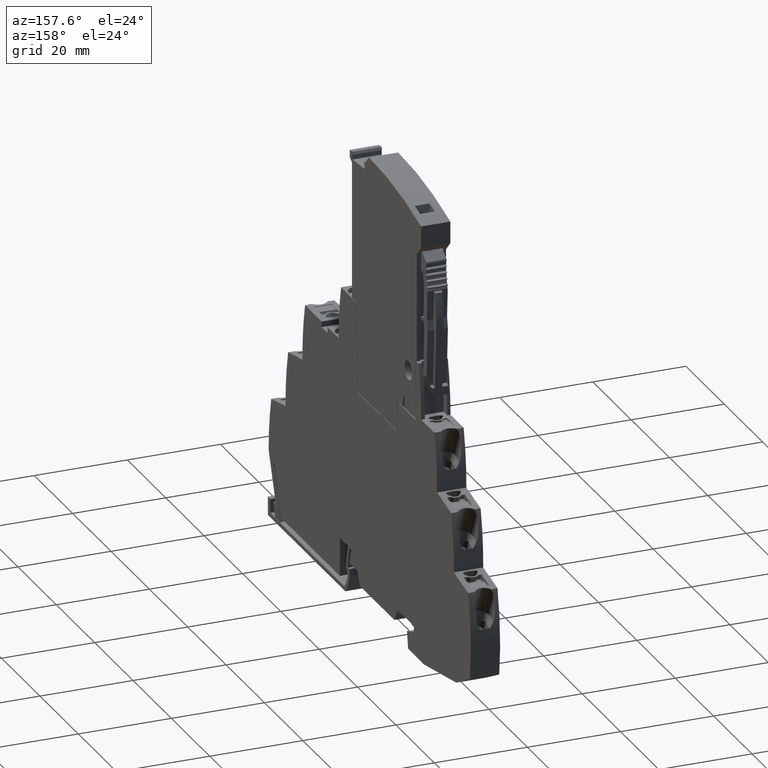
[diagram: clean part render]
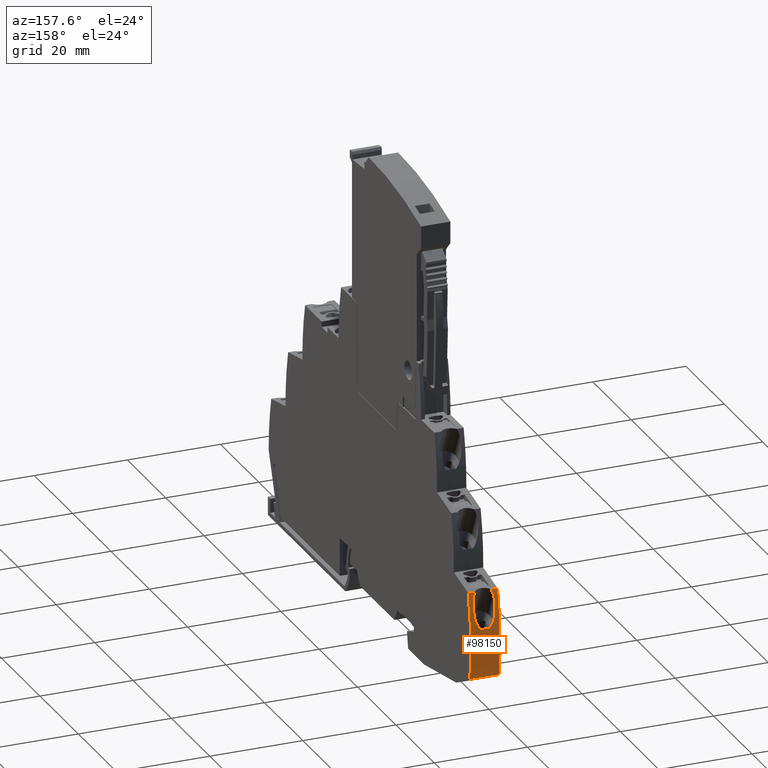
[diagram: same view with one face highlighted and labeled with its STEP entity id]
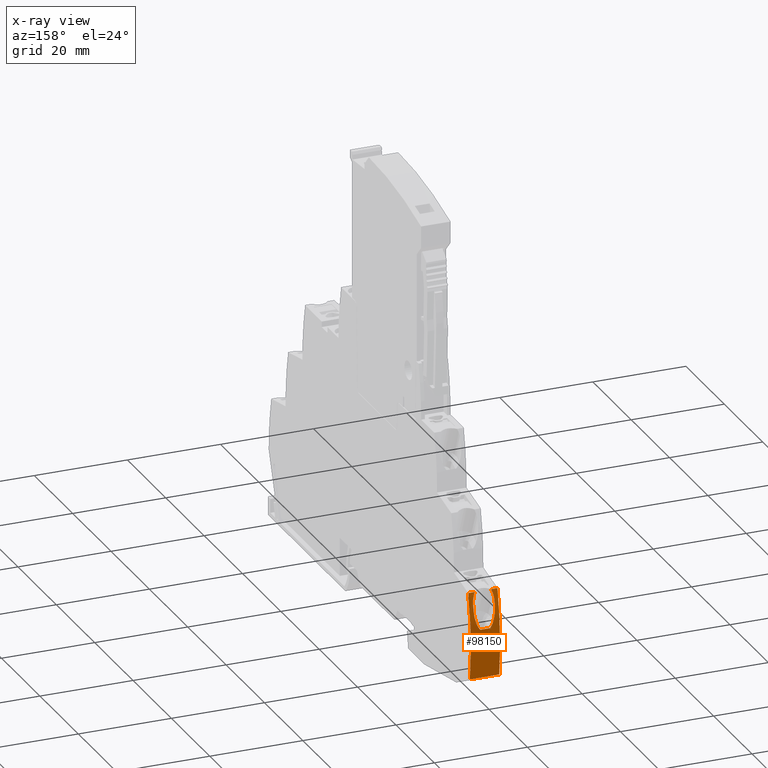
[diagram: x-ray of the same camera — body ghosted, the highlighted face saturated]
A machine part, auxiliary view. The second image highlights one B-rep face of the part: STEP entity #98150.
The next image is the same camera in x-ray: the body ghosted, the highlighted face saturated — about 0% of this face is hidden behind the body in this view.
In plain terms, the highlighted cylindrical surface (partial cylindrical patch) has radius 50 mm, axis along (1, -0, -0).
Its self-contained STEP definition (entity closure, byte-faithful):
#24380=CARTESIAN_POINT('',(28.3248298485418,18.9749312571121,
6.30000008066345));
#24390=VERTEX_POINT('',#24380);
#24420=CARTESIAN_POINT('',(-20.3052351230874,7.3509568569714,
6.30000001878975));
#24430=DIRECTION('',(-4.25831752161686E-18,-1.10352358519E-9,1.));
#24440=DIRECTION('',(1.,0.,4.25831752161686E-18));
#24450=AXIS2_PLACEMENT_3D('',#24420,#24430,#24440);
#24460=CIRCLE('',#24450,50.);
#24470=CARTESIAN_POINT('',(29.2351400995933,0.586991836659795,
6.30000008182167));
#24480=VERTEX_POINT('',#24470);
#24490=EDGE_CURVE('',#24480,#24390,#24460,.T.);
#95450=CARTESIAN_POINT('',(28.3248298485417,18.9749312640644,
2.09392815591282E-8));
#95460=DIRECTION('',(4.25831752161686E-18,1.10352358519E-9,-1.));
#95470=VECTOR('',#95460,1.);
#95480=LINE('',#95450,#95470);
#95490=CARTESIAN_POINT('',(28.3248298485417,18.9749312586198,
4.93382129660629));
#95500=VERTEX_POINT('',#95490);
#95510=EDGE_CURVE('',#24390,#95500,#95480,.T.);
#95590=CARTESIAN_POINT('',(28.3248298485418,18.9749312640643,
2.09392812177507E-8));
#95600=VERTEX_POINT('',#95590);
#95630=CARTESIAN_POINT('',(28.3248298485417,18.9749312640644,
2.09392815591282E-8));
#95640=DIRECTION('',(-4.25831752161686E-18,-1.10352358519E-9,1.));
#95650=VECTOR('',#95640,1.);
#95660=LINE('',#95630,#95650);
#95670=CARTESIAN_POINT('',(28.3248298485425,18.9749312625537,
1.36617876853156));
#95680=VERTEX_POINT('',#95670);
#95690=EDGE_CURVE('',#95600,#95680,#95660,.T.);
#96350=CARTESIAN_POINT('',(27.3557931861141,12.8862954601481,
3.25000002850913));
#96360=DIRECTION('',(0.390731082790663,0.920504872850349,
6.01727697571383E-10));
#96370=DIRECTION('',(-0.920504872850349,0.390731082790663,
1.84207079026413E-11));
#96380=AXIS2_PLACEMENT_3D('',#96350,#96360,#96370);
#96390=CYLINDRICAL_SURFACE('',#96380,2.4);
#96400=CARTESIAN_POINT('',(-20.3052351230874,7.3509568639236,
8.11195144784585E-9));
#96410=DIRECTION('',(-4.25831752161686E-18,-1.10352358519E-9,1.));
#96420=DIRECTION('',(1.,0.,4.25831752161686E-18));
#96430=AXIS2_PLACEMENT_3D('',#96400,#96410,#96420);
#96440=CYLINDRICAL_SURFACE('',#96430,50.);
#96450=CARTESIAN_POINT('',(28.3248298485536,18.9749312625815,
1.36617876848848));
#96460=CARTESIAN_POINT('',(28.371737302423,18.7786892157929,
1.27156871511747));
#96470=CARTESIAN_POINT('',(28.4189138152369,18.5760385378896,
1.19311444070335));
#96480=CARTESIAN_POINT('',(28.4657354832024,18.368779974366,
1.1276081292797));
#96490=CARTESIAN_POINT('',(28.5125671558539,18.1614771245763,
1.06208782070252));
#96500=CARTESIAN_POINT('',(28.5590416661705,17.9495522796298,
1.00965788279796));
#96510=CARTESIAN_POINT('',(28.6044368611651,17.7357527873217,
0.968705964483489));
#96520=CARTESIAN_POINT('',(28.6498138674886,17.5220389588956,
0.927770454534922));
#96530=CARTESIAN_POINT('',(28.6941522065579,17.3063086259138,
0.898237846139544));
#96540=CARTESIAN_POINT('',(28.737259777133,17.0892161510327,
0.8787806058038));
#96550=CARTESIAN_POINT('',(28.7803477544654,16.872222348972,
0.859332209168344));
#96560=CARTESIAN_POINT('',(28.8221465814913,16.6541637392281,
0.850000029439151));
#96570=CARTESIAN_POINT('',(28.8624864744992,16.4358428227668,
0.850000030829445));
#96580=B_SPLINE_CURVE_WITH_KNOTS('',3,(#96450,#96460,#96470,#96480,
#96490,#96500,#96510,#96520,#96530,#96540,#96550,#96560,#96570),
.UNSPECIFIED.,.F.,.F.,(4,3,3,3,4),(0.,0.667019382014363,1.33462576352451
,2.00103133372105,2.66713754970372),.UNSPECIFIED.);
#96590=SURFACE_CURVE('',#96580,(#96390,#96440),.CURVE_3D.);
#96600=CARTESIAN_POINT('',(28.862486474547,16.4358428227756,
0.850000030828847));
#96610=VERTEX_POINT('',#96600);
#96620=EDGE_CURVE('',#95680,#96610,#96590,.T.);
#96980=CARTESIAN_POINT('',(29.2351400995934,0.586991843611994,
6.47756729490483E-10));
#96990=DIRECTION('',(4.25831752161686E-18,1.10352358519E-9,-1.));
#97000=VECTOR('',#96990,1.);
#97010=LINE('',#96980,#97000);
#97020=CARTESIAN_POINT('',(29.2351400995933,0.586991843612006,
6.4775697356505E-10));
#97030=VERTEX_POINT('',#97020);
#97040=EDGE_CURVE('',#24480,#97030,#97010,.T.);
#97050=ORIENTED_EDGE('',*,*,#97040,.T.);
#97060=ORIENTED_EDGE('',*,*,#24490,.F.);
#97070=ORIENTED_EDGE('',*,*,#95510,.F.);
#97080=CARTESIAN_POINT('',(27.3557931861575,12.8862954602601,
3.05000002823553));
#97090=DIRECTION('',(0.390731082790663,0.920504872850349,
5.97847550714147E-10));
#97100=DIRECTION('',(-0.920504872850349,0.390731082790663,
1.79100721330412E-11));
#97110=AXIS2_PLACEMENT_3D('',#97080,#97090,#97100);
#97120=CYLINDRICAL_SURFACE('',#97110,2.4);
#97130=CARTESIAN_POINT('',(28.3248298485417,18.9749312586198,
4.93382129660629));
#97140=CARTESIAN_POINT('',(28.3717431654547,18.7786646829897,
5.02844317516408));
#97150=CARTESIAN_POINT('',(28.4193080981988,18.5743319785819,
5.10751694680456));
#97160=CARTESIAN_POINT('',(28.4661798664777,18.3668126994844,
5.17301327407816));
#97170=CARTESIAN_POINT('',(28.5130141893723,18.1594592054522,
5.23845727699454));
#97180=CARTESIAN_POINT('',(28.5592058839116,17.9487948543151,
5.29051478545078));
#97190=CARTESIAN_POINT('',(28.6045950540073,17.7350077076727,
5.33143676506));
#97200=CARTESIAN_POINT('',(28.6499540772047,17.5213625556819,
5.3723315648208));
#97210=CARTESIAN_POINT('',(28.6943702574809,17.3052253038066,
5.40187943706297));
#97220=CARTESIAN_POINT('',(28.7373870580919,17.0885751290637,
5.42127687882642));
#97230=CARTESIAN_POINT('',(28.7804236973002,16.8718250390433,
5.44068326635128));
#97240=CARTESIAN_POINT('',(28.8221867788311,16.6539461820629,
5.45000002917298));
#97250=CARTESIAN_POINT('',(28.8624864545877,16.4358429254519,
5.45000003054088));
#97260=B_SPLINE_CURVE_WITH_KNOTS('',3,(#97130,#97140,#97150,#97160,
#97170,#97180,#97190,#97200,#97210,#97220,#97230,#97240,#97250),
.UNSPECIFIED.,.F.,.F.,(4,3,3,3,4),(0.,0.669129781428772,1.33540070620062
,2.0016873958675,2.66713745140423),.UNSPECIFIED.);
#97270=SURFACE_CURVE('',#97260,(#96440,#97120),.CURVE_3D.);
#97280=CARTESIAN_POINT('',(28.8624864546356,16.4358429254607,
5.45000003054148));
#97290=VERTEX_POINT('',#97280);
#97300=EDGE_CURVE('',#95500,#97290,#97270,.T.);
#97310=ORIENTED_EDGE('',*,*,#97300,.F.);
#97320=CARTESIAN_POINT('',(-20.3052351230874,7.3509568579094,
5.45000001480175));
#97330=DIRECTION('',(-2.4614331803655E-18,1.10352358394837E-9,-1.));
#97340=DIRECTION('',(0.983354431744974,0.18169772031459,
2.00507717096343E-10));
#97350=AXIS2_PLACEMENT_3D('',#97320,#97330,#97340);
#97360=CIRCLE('',#97350,50.);
#97370=CARTESIAN_POINT('',(29.0514942231336,15.3455342853839,
5.45000002362395));
#97380=VERTEX_POINT('',#97370);
#97390=EDGE_CURVE('',#97290,#97380,#97360,.T.);
#97400=ORIENTED_EDGE('',*,*,#97390,.F.);
#97410=CARTESIAN_POINT('',(28.8779954278092,14.9367967330004,
3.05000002968929));
#97420=DIRECTION('',(-0.390731082786406,-0.920504872852155,
-5.97773776464338E-10));
#97430=DIRECTION('',(0.920504872852155,-0.390731082786406,
-1.12247074504474E-11));
#97440=AXIS2_PLACEMENT_3D('',#97410,#97420,#97430);
#97450=CYLINDRICAL_SURFACE('',#97440,2.40000000000534);
#97460=CARTESIAN_POINT('',(29.0514942253241,15.34553427186,
5.45000002996006));
#97470=CARTESIAN_POINT('',(29.1111993100674,14.9769284587181,
5.45000002749841));
#97480=CARTESIAN_POINT('',(29.1667566190729,14.6076360566627,
5.42549802919037));
#97490=CARTESIAN_POINT('',(29.2178251802445,14.2405503287651,
5.37764663415854));
#97500=CARTESIAN_POINT('',(29.2689384263986,13.8731434009162,
5.32975336916395));
#97510=CARTESIAN_POINT('',(29.3157380784546,13.5064434556475,
5.25823985057164));
#97520=CARTESIAN_POINT('',(29.3576934889237,13.1469487214282,
5.16147250871523));
#97530=CARTESIAN_POINT('',(29.3996611136095,12.7873493297523,
5.064676995587));
#97540=CARTESIAN_POINT('',(29.4367740019951,12.435169375376,
4.94338764813732));
#97550=CARTESIAN_POINT('',(29.4691858222611,12.0951132172819,
4.7885448327808));
#97560=CARTESIAN_POINT('',(29.5014752860501,11.7563407906534,
4.6342865579173));
#97570=CARTESIAN_POINT('',(29.5291961246046,11.4266809153236,
4.44637305411941));
#97580=CARTESIAN_POINT('',(29.5509109137879,11.1410363240273,
4.20728589773987));
#97590=B_SPLINE_CURVE_WITH_KNOTS('',3,(#97460,#97470,#97480,#97490,
#97500,#97510,#97520,#97530,#97540,#97550,#97560,#97570,#97580),
.UNSPECIFIED.,.F.,.F.,(4,3,3,3,4),(0.,1.12056532642393,2.24491679306269,
3.36774348572176,4.49134308601616),.UNSPECIFIED.);
#97600=SURFACE_CURVE('',#97590,(#96440,#97450),.CURVE_3D.);
#97610=CARTESIAN_POINT('',(29.550910913791,11.1410363240356,
4.20728589773022));
#97620=VERTEX_POINT('',#97610);
#97630=EDGE_CURVE('',#97380,#97620,#97600,.T.);
#97640=ORIENTED_EDGE('',*,*,#97630,.F.);
#97650=CARTESIAN_POINT('',(29.5509109140079,11.1410363258644,
1.22943937361451E-8));
#97660=DIRECTION('',(4.25831752161686E-18,1.10352358519E-9,-1.));
#97670=VECTOR('',#97660,1.);
#97680=LINE('',#97650,#97670);
#97690=CARTESIAN_POINT('',(29.5509109138669,11.1410363253708,
2.09271415726655));
#97700=VERTEX_POINT('',#97690);
#97710=EDGE_CURVE('',#97620,#97700,#97680,.T.);
#97720=ORIENTED_EDGE('',*,*,#97710,.F.);
#97730=CARTESIAN_POINT('',(28.8779954277658,14.9367967328885,
3.25000003001119));
#97740=DIRECTION('',(-0.390731082786406,-0.920504872852155,
-6.01801542064215E-10));
#97750=DIRECTION('',(0.920504872852155,-0.390731082786406,
-2.51059722625071E-11));
#97760=AXIS2_PLACEMENT_3D('',#97730,#97740,#97750);
#97770=CYLINDRICAL_SURFACE('',#97760,2.40000000000534);
#97780=CARTESIAN_POINT('',(29.5509109139013,11.141036324957,
2.09271415762612));
#97790=CARTESIAN_POINT('',(29.5290910654596,11.4280629063109,
1.85247026334026));
#97800=CARTESIAN_POINT('',(29.5014183656568,11.7569606253479,
1.66540644538811));
#97810=CARTESIAN_POINT('',(29.4691558362279,12.0954278158217,
1.51131198507559));
#97820=CARTESIAN_POINT('',(29.4367264028634,12.4356460006274,
1.35642034697397));
#97830=CARTESIAN_POINT('',(29.3992455733788,12.7910169388819,
1.23424911691578));
#97840=CARTESIAN_POINT('',(29.3574932324571,13.148664365069,
1.13806594795894));
#97850=CARTESIAN_POINT('',(29.3156154580421,13.5073862451675,
1.04159382296736));
#97860=CARTESIAN_POINT('',(29.2689165433285,13.8732902259534,
0.970235918272764));
#97870=CARTESIAN_POINT('',(29.2178520115645,14.2403574648216,
0.922378568032415));
#97880=CARTESIAN_POINT('',(29.1668062348022,14.6072898870867,
0.874538794858903));
#97890=CARTESIAN_POINT('',(29.1112037857216,14.976900836484,
0.850000028051833));
#97900=CARTESIAN_POINT('',(29.0514942103455,15.3455343694109,
0.850000030273072));
#97910=B_SPLINE_CURVE_WITH_KNOTS('',3,(#97780,#97790,#97800,#97810,
#97820,#97830,#97840,#97850,#97860,#97870,#97880,#97890,#97900),
.UNSPECIFIED.,.F.,.F.,(4,3,3,3,4),(0.,1.1239466616074,2.24821435967042,
3.37058153476118,4.49134330079224),.UNSPECIFIED.);
#97920=SURFACE_CURVE('',#97910,(#96440,#97770),.CURVE_3D.);
#97930=CARTESIAN_POINT('',(29.0514942103455,15.3455343694109,
0.850000023828979));
#97940=VERTEX_POINT('',#97930);
#97950=EDGE_CURVE('',#97700,#97940,#97920,.T.);
#97960=ORIENTED_EDGE('',*,*,#97950,.F.);
#97970=CARTESIAN_POINT('',(-20.3052351230874,7.3509568629856,
0.850000015006774));
#97980=DIRECTION('',(-3.82040882911432E-18,-1.10352358511907E-9,1.));
#97990=DIRECTION('',(0.987134586825427,0.159891549160653,
1.76444099331263E-10));
#98000=AXIS2_PLACEMENT_3D('',#97970,#97980,#97990);
#98010=CIRCLE('',#98000,50.);
#98020=EDGE_CURVE('',#97940,#96610,#98010,.T.);
#98030=ORIENTED_EDGE('',*,*,#98020,.F.);
#98040=ORIENTED_EDGE('',*,*,#96620,.T.);
#98050=ORIENTED_EDGE('',*,*,#95690,.T.);
#98060=CARTESIAN_POINT('',(-20.3052351230874,7.3509568639236,
8.11195144784589E-9));
#98070=DIRECTION('',(4.25831752161686E-18,1.10352358519E-9,-1.));
#98080=DIRECTION('',(1.,0.,4.25831752161686E-18));
#98090=AXIS2_PLACEMENT_3D('',#98060,#98070,#98080);
#98100=CIRCLE('',#98090,50.);
#98110=EDGE_CURVE('',#95600,#97030,#98100,.T.);
#98120=ORIENTED_EDGE('',*,*,#98110,.F.);
#98130=EDGE_LOOP('',(#98120,#98050,#98040,#98030,#97960,#97720,#97640,
#97400,#97310,#97070,#97060,#97050));
#98140=FACE_OUTER_BOUND('',#98130,.T.);
#98150=ADVANCED_FACE('',(#98140),#96440,.T.);